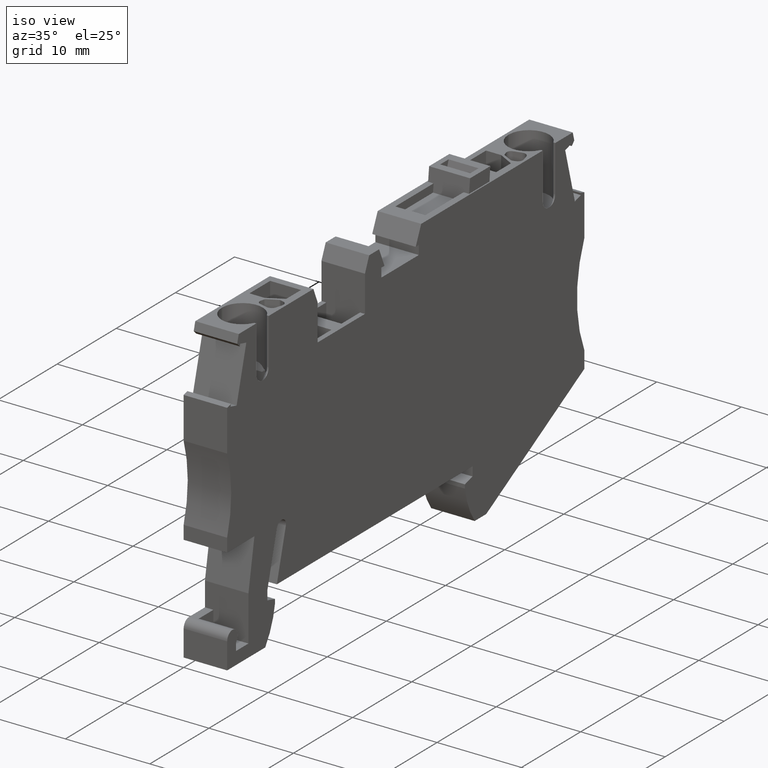
[diagram: clean part render]
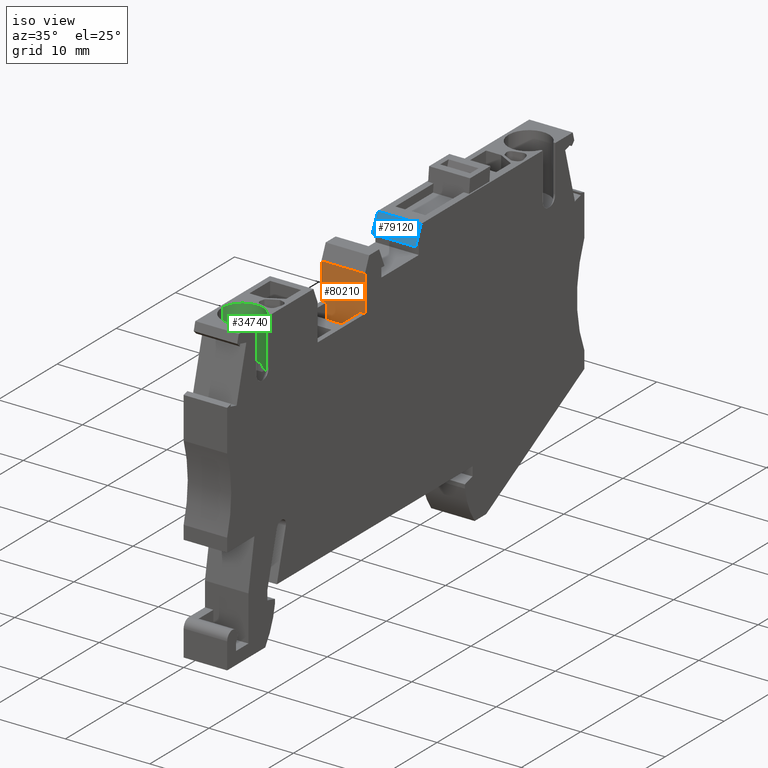
[diagram: same view with three faces highlighted in distinct colors, each labeled with its STEP entity id]
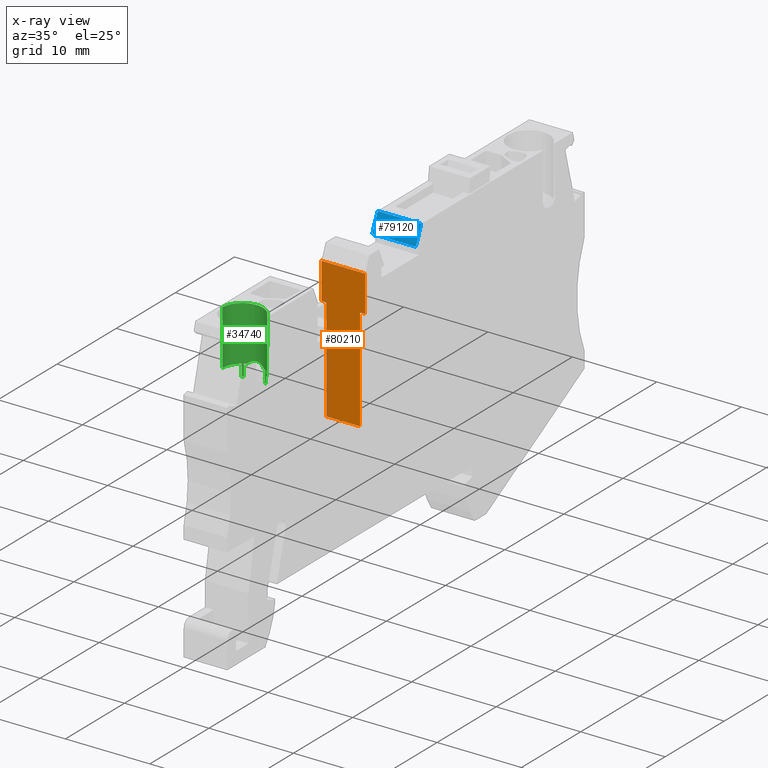
[diagram: x-ray of the same camera — body ghosted, the three highlighted faces saturated]
A machine part, iso view with three faces highlighted in distinct colors.
The next image is the same camera in x-ray (body ghosted, the three faces saturated) — at least one of them is partly hidden behind the body in this view.
Their STEP definitions:

[orange] entity #80210 — the highlighted planar face has unit normal (-0, -1, -0).
#280=CARTESIAN_POINT('',(0.932167221675293,-15.1500000000016,
53.6700000000084));
#290=VERTEX_POINT('',#280);
#320=CARTESIAN_POINT('',(0.932167221675449,-42.5540372297518,
53.6699999999942));
#330=DIRECTION('',(5.53723733531797E-15,-1.,0.));
#340=VECTOR('',#330,1.);
#350=LINE('',#320,#340);
#360=CARTESIAN_POINT('',(0.932167221675343,-10.8500000000034,
53.6700000000109));
#370=VERTEX_POINT('',#360);
#380=EDGE_CURVE('',#370,#290,#350,.T.);
#10530=CARTESIAN_POINT('',(0.932167221675343,-10.8500000000034,
48.5199999999973));
#10540=VERTEX_POINT('',#10530);
#10570=CARTESIAN_POINT('',(0.932167221675449,-42.5540372297518,
48.5199999999973));
#10580=DIRECTION('',(-5.53723733531797E-15,1.,0.));
#10590=VECTOR('',#10580,1.);
#10600=LINE('',#10570,#10590);
#10610=CARTESIAN_POINT('',(0.932167221675293,-15.1500000000016,
48.5199999999973));
#10620=VERTEX_POINT('',#10610);
#10630=EDGE_CURVE('',#10620,#10540,#10600,.T.);
#11380=CARTESIAN_POINT('',(0.932167221675293,-15.1500000000016,53.67));
#11390=DIRECTION('',(0.,0.,1.));
#11400=VECTOR('',#11390,1.);
#11410=LINE('',#11380,#11400);
#11420=CARTESIAN_POINT('',(0.9321672216753,-15.1500000000016,
49.0949999999999));
#11430=VERTEX_POINT('',#11420);
#11440=EDGE_CURVE('',#10620,#11430,#11410,.T.);
#11660=CARTESIAN_POINT('',(0.932167221675307,-15.1500000000016,53.095));
#11670=VERTEX_POINT('',#11660);
#11700=EDGE_CURVE('',#11670,#290,#11410,.T.);
#79700=CARTESIAN_POINT('',(0.932167221675336,-10.8500000000033,49.845));
#79710=DIRECTION('',(0.,0.,1.));
#79720=VECTOR('',#79710,1.);
#79730=LINE('',#79700,#79720);
#79740=EDGE_CURVE('',#10540,#370,#79730,.T.);
#79870=CARTESIAN_POINT('',(0.932167221675293,-15.1500000000016,
53.0949999999999));
#79880=DIRECTION('',(-1.,-5.53723733531797E-15,-0.));
#79890=DIRECTION('',(-5.53723733531797E-15,1.,0.));
#79900=AXIS2_PLACEMENT_3D('',#79870,#79880,#79890);
#79910=PLANE('',#79900);
#79920=CARTESIAN_POINT('',(0.932167221675449,-42.5540372297518,53.095));
#79930=DIRECTION('',(5.53723733531797E-15,-1.,0.));
#79940=VECTOR('',#79930,1.);
#79950=LINE('',#79920,#79940);
#79960=CARTESIAN_POINT('',(0.932167221675371,-27.35,53.095));
#79970=VERTEX_POINT('',#79960);
#79980=EDGE_CURVE('',#11670,#79970,#79950,.T.);
#79990=ORIENTED_EDGE('',*,*,#79980,.F.);
#80000=CARTESIAN_POINT('',(0.932167221675371,-27.35,53.67));
#80010=DIRECTION('',(0.,0.,-1.));
#80020=VECTOR('',#80010,1.);
#80030=LINE('',#80000,#80020);
#80040=CARTESIAN_POINT('',(0.932167221675371,-27.35,49.0949999999999));
#80050=VERTEX_POINT('',#80040);
#80060=EDGE_CURVE('',#79970,#80050,#80030,.T.);
#80070=ORIENTED_EDGE('',*,*,#80060,.F.);
#80080=CARTESIAN_POINT('',(0.932167221675449,-42.5540372297518,
49.0949999999999));
#80090=DIRECTION('',(5.53723733531797E-15,-1.,0.));
#80100=VECTOR('',#80090,1.);
#80110=LINE('',#80080,#80100);
#80120=EDGE_CURVE('',#11430,#80050,#80110,.T.);
#80130=ORIENTED_EDGE('',*,*,#80120,.T.);
#80140=ORIENTED_EDGE('',*,*,#11440,.T.);
#80150=ORIENTED_EDGE('',*,*,#10630,.F.);
#80160=ORIENTED_EDGE('',*,*,#79740,.F.);
#80170=ORIENTED_EDGE('',*,*,#380,.F.);
#80180=ORIENTED_EDGE('',*,*,#11700,.T.);
#80190=EDGE_LOOP('',(#80180,#80170,#80160,#80150,#80140,#80130,#80070,
#79990));
#80200=FACE_OUTER_BOUND('',#80190,.T.);
#80210=ADVANCED_FACE('',(#80200),#79910,.T.);

[blue] entity #79120 — the highlighted planar face has unit normal (-0, -0.9155, 0.4023).
#1000=CARTESIAN_POINT('',(9.51676875458973,-11.2550000000016,
53.6700000000117));
#1010=VERTEX_POINT('',#1000);
#1040=CARTESIAN_POINT('',(-3.97307229660355,-41.9517495493763,
53.6699999999924));
#1050=DIRECTION('',(-0.402320578212711,-0.915498854366618,
-5.73485703370125E-13));
#1060=VECTOR('',#1050,1.);
#1070=LINE('',#1040,#1060);
#1080=CARTESIAN_POINT('',(10.4418215966536,-9.15000000000095,
53.670000000013));
#1090=VERTEX_POINT('',#1080);
#1100=EDGE_CURVE('',#1090,#1010,#1070,.T.);
#9810=CARTESIAN_POINT('',(10.4418215966535,-9.15000000000095,
48.5199999999973));
#9820=VERTEX_POINT('',#9810);
#9850=CARTESIAN_POINT('',(-3.97307229660355,-41.9517495493763,
48.5199999999973));
#9860=DIRECTION('',(0.402320578212711,0.915498854366618,0.));
#9870=VECTOR('',#9860,1.);
#9880=LINE('',#9850,#9870);
#9890=CARTESIAN_POINT('',(9.51676875458973,-11.2550000000016,
48.5199999999973));
#9900=VERTEX_POINT('',#9890);
#9910=EDGE_CURVE('',#9900,#9820,#9880,.T.);
#13550=CARTESIAN_POINT('',(9.51676875458971,-11.2550000000016,53.67));
#13560=DIRECTION('',(0.,0.,-1.));
#13570=VECTOR('',#13560,1.);
#13580=LINE('',#13550,#13570);
#13590=EDGE_CURVE('',#1010,#9900,#13580,.T.);
#51090=CARTESIAN_POINT('',(10.4418215966535,-9.15000000000095,53.67));
#51100=DIRECTION('',(0.,0.,1.));
#51110=VECTOR('',#51100,1.);
#51120=LINE('',#51090,#51110);
#51130=EDGE_CURVE('',#9820,#1090,#51120,.T.);
#79010=CARTESIAN_POINT('',(9.62153241643358,-11.0166055017053,48.0049976
));
#79020=DIRECTION('',(-0.915498854366618,0.402320578212711,0.));
#79030=DIRECTION('',(0.402320578212711,0.915498854366618,0.));
#79040=AXIS2_PLACEMENT_3D('',#79010,#79020,#79030);
#79050=PLANE('',#79040);
#79060=ORIENTED_EDGE('',*,*,#1100,.F.);
#79070=ORIENTED_EDGE('',*,*,#13590,.F.);
#79080=ORIENTED_EDGE('',*,*,#9910,.F.);
#79090=ORIENTED_EDGE('',*,*,#51130,.F.);
#79100=EDGE_LOOP('',(#79090,#79080,#79070,#79060));
#79110=FACE_OUTER_BOUND('',#79100,.T.);
#79120=ADVANCED_FACE('',(#79110),#79050,.T.);

[green] entity #34740 — the highlighted cylindrical surface (edge-blend (fillet) strip) has radius 2.4 mm, axis along (0, -0, -1).
#5660=CARTESIAN_POINT('',(-16.3428327783249,-15.6445224466506,
53.670000000006));
#5670=VERTEX_POINT('',#5660);
#23200=CARTESIAN_POINT('',(-15.342832778324,-9.15000000000337,
53.4517424229313));
#23210=VERTEX_POINT('',#23200);
#23240=CARTESIAN_POINT('',(-16.3428327783239,-9.15000000000349,
51.2700000000041));
#23250=DIRECTION('',(2.14536721721004E-13,1.,-8.45638444024485E-18));
#23260=DIRECTION('',(-1.,2.14536721721004E-13,-1.24382875640965E-16));
#23270=AXIS2_PLACEMENT_3D('',#23240,#23250,#23260);
#23280=CIRCLE('',#23270,2.4);
#23290=CARTESIAN_POINT('',(-16.3428327783239,-9.15000000000349,
48.8700000000041));
#23300=VERTEX_POINT('',#23290);
#23310=EDGE_CURVE('',#23210,#23300,#23280,.T.);
#31130=CARTESIAN_POINT('',(-16.3428327783253,-15.6445224466523,
51.2700000000041));
#31140=DIRECTION('',(2.14536721721004E-13,1.,-8.45638444024485E-18));
#31150=DIRECTION('',(-1.,2.18186579914459E-13,-1.24382875640965E-16));
#31160=AXIS2_PLACEMENT_3D('',#31130,#31140,#31150);
#31170=CIRCLE('',#31160,2.4);
#31180=CARTESIAN_POINT('',(-14.1549474690399,-15.6445224466543,
50.2835123551688));
#31190=VERTEX_POINT('',#31180);
#31200=CARTESIAN_POINT('',(-14.2928327783257,-15.6445224466528,
50.0220016025687));
#31210=VERTEX_POINT('',#31200);
#31220=EDGE_CURVE('',#31190,#31210,#31170,.T.);
#32100=CARTESIAN_POINT('',(-14.1549474690386,-15.6445224466525,
52.2564876448391));
#32110=VERTEX_POINT('',#32100);
#32230=CARTESIAN_POINT('',(-16.3428327783264,-20.3364576336993,
51.2700000000041));
#32240=DIRECTION('',(-0.90630778703661,0.422618261740786,
-1.16302991260173E-16));
#32250=DIRECTION('',(0.422618261740786,0.90630778703661,
4.49023876253122E-17));
#32260=AXIS2_PLACEMENT_3D('',#32230,#32240,#32250);
#32270=ELLIPSE('',#32260,5.67888379956745,2.4);
#32280=EDGE_CURVE('',#32110,#31190,#32270,.T.);
#32440=CARTESIAN_POINT('',(-14.2928327783255,-16.9888751282982,
52.517998397438));
#32450=VERTEX_POINT('',#32440);
#32460=CARTESIAN_POINT('',(-14.2928327783255,-16.9888751282982,
50.0220016025702));
#32470=VERTEX_POINT('',#32460);
#32500=CARTESIAN_POINT('',(-14.2928327783245,-6.99021844665472,
50.0220016025676));
#32510=DIRECTION('',(-2.14536721721004E-13,-1.,8.45638444024485E-18));
#32520=VECTOR('',#32510,1.);
#32530=LINE('',#32500,#32520);
#32540=EDGE_CURVE('',#31210,#32470,#32530,.T.);
#32780=CARTESIAN_POINT('',(-14.2928327783245,-15.6445224466525,
52.5179983974395));
#32790=VERTEX_POINT('',#32780);
#32820=CARTESIAN_POINT('',(-14.2928327783245,-6.99021844665472,
52.5179983974407));
#32830=DIRECTION('',(-2.14536721721004E-13,-1.,8.45638444024485E-18));
#32840=VECTOR('',#32830,1.);
#32850=LINE('',#32820,#32840);
#32860=EDGE_CURVE('',#32790,#32450,#32850,.T.);
#33000=CARTESIAN_POINT('',(-16.3428327783253,-15.6445224466523,
51.2700000000041));
#33010=DIRECTION('',(2.14536721721004E-13,1.,-8.45638444024485E-18));
#33020=DIRECTION('',(-1.,2.16354711923827E-13,-1.24382875640965E-16));
#33030=AXIS2_PLACEMENT_3D('',#33000,#33010,#33020);
#33040=CIRCLE('',#33030,2.4);
#33050=EDGE_CURVE('',#32790,#32110,#33040,.T.);
#33170=CARTESIAN_POINT('',(-16.3428327783235,-6.99021844665429,
51.2700000000041));
#33180=DIRECTION('',(-2.14536721721004E-13,-1.,8.45638444024485E-18));
#33190=DIRECTION('',(-1.,2.14453454994157E-13,-1.24382875640965E-16));
#33200=AXIS2_PLACEMENT_3D('',#33170,#33180,#33190);
#33210=CYLINDRICAL_SURFACE('',#33200,2.4);
#33220=CARTESIAN_POINT('',(-16.3428327783235,-6.99021844665429,
48.8700000000041));
#33230=DIRECTION('',(-2.14508966145388E-13,-1.,8.45638444024486E-18));
#33240=VECTOR('',#33230,1.);
#33250=LINE('',#33220,#33240);
#33260=CARTESIAN_POINT('',(-16.3428327783253,-15.6445224466539,
48.8700000000041));
#33270=VERTEX_POINT('',#33260);
#33280=EDGE_CURVE('',#23300,#33270,#33250,.T.);
#33290=ORIENTED_EDGE('',*,*,#33280,.T.);
#33300=ORIENTED_EDGE('',*,*,#23310,.T.);
#33310=CARTESIAN_POINT('',(-15.3428327783245,-6.9902184466545,
53.4517424229317));
#33320=DIRECTION('',(-2.14536721721004E-13,-1.,8.45638444024485E-18));
#33330=VECTOR('',#33320,1.);
#33340=LINE('',#33310,#33330);
#33350=CARTESIAN_POINT('',(-15.3428327783244,-14.6445224466602,
53.4517424229309));
#33360=VERTEX_POINT('',#33350);
#33370=EDGE_CURVE('',#23210,#33360,#33340,.T.);
#33380=ORIENTED_EDGE('',*,*,#33370,.F.);
#33390=CARTESIAN_POINT('',(-16.3428327783244,-14.6445224466602,
53.6700000000005));
#33400=DIRECTION('',(6.64438279136028E-17,-1.70471113707983E-17,1.));
#33410=DIRECTION('',(-1.,-1.10883524584438E-14,-1.24382875640963E-16));
#33420=AXIS2_PLACEMENT_3D('',#33390,#33400,#33410);
#33430=CYLINDRICAL_SURFACE('',#33420,0.999999999999998);
#33440=CARTESIAN_POINT('',(-15.3428327783244,-14.6445224466602,
53.4517424229309));
#33450=CARTESIAN_POINT('',(-15.3428327783244,-14.6609937294319,
53.4517424229309));
#33460=CARTESIAN_POINT('',(-15.3432399993167,-14.6775034901492,
53.4519292120811));
#33470=CARTESIAN_POINT('',(-15.3440585453957,-14.6940202409314,
53.4523038357787));
#33480=CARTESIAN_POINT('',(-15.3448770865429,-14.7105368921962,
53.4526784572191));
#33490=CARTESIAN_POINT('',(-15.3461069717698,-14.72706014291,
53.4532409214868));
#33500=CARTESIAN_POINT('',(-15.3477486724844,-14.7435558869948,
53.453988924496));
#33510=CARTESIAN_POINT('',(-15.349390367361,-14.7600515724208,
53.4547369248453));
#33520=CARTESIAN_POINT('',(-15.3514438585261,-14.7765193468151,
53.4556704484424));
#33530=CARTESIAN_POINT('',(-15.3539055887324,-14.7929239752426,
53.4567837144313));
#33540=CARTESIAN_POINT('',(-15.3563673156137,-14.8093285815131,
53.4578969789167));
#33550=CARTESIAN_POINT('',(-15.3592372275142,-14.8256696451151,
53.4591899484136));
#33560=CARTESIAN_POINT('',(-15.3625076782924,-14.8419121582644,
53.4606534865797));
#33570=CARTESIAN_POINT('',(-15.3657781312344,-14.8581546821603,
53.4621170257141));
#33580=CARTESIAN_POINT('',(-15.3694490398065,-14.8742982838228,
53.4637510781326));
#33590=CARTESIAN_POINT('',(-15.3735088995456,-14.8903093829061,
53.4655434903563));
#33600=CARTESIAN_POINT('',(-15.377568769701,-14.9063205230689,
53.4673359071787));
#33610=CARTESIAN_POINT('',(-15.3820174852814,-14.9221988263394,
53.4692866155143));
#33620=CARTESIAN_POINT('',(-15.3868401648258,-14.9379131808971,
53.4713809581608));
#33630=CARTESIAN_POINT('',(-15.3916628658312,-14.953627605384,
53.4734753101271));
#33640=CARTESIAN_POINT('',(-15.3968594094761,-14.969177792527,
53.4757132207877));
#33650=CARTESIAN_POINT('',(-15.4024122394638,-14.9845359906392,
53.4780781711946));
#33660=CARTESIAN_POINT('',(-15.4079644412736,-14.9998924513163,
53.4804428540604));
#33670=CARTESIAN_POINT('',(-15.413867555631,-15.0150487251371,
53.4829324523844));
#33680=CARTESIAN_POINT('',(-15.4201574145124,-15.0301001599871,
53.4855518890406));
#33690=CARTESIAN_POINT('',(-15.4327302352219,-15.0601865252548,
53.4907878900477));
#33700=CARTESIAN_POINT('',(-15.4467936958893,-15.0896960648176,
53.4965198229913));
#33710=CARTESIAN_POINT('',(-15.462263972199,-15.1184407705083,
53.5026214586661));
#33720=CARTESIAN_POINT('',(-15.4777340815157,-15.1471851659159,
53.5087230284771));
#33730=CARTESIAN_POINT('',(-15.4946084880179,-15.1751596680484,
53.5151926651029));
#33740=CARTESIAN_POINT('',(-15.5127674134959,-15.202188556544,
53.5218862071894));
#33750=CARTESIAN_POINT('',(-15.5309264107709,-15.2292175519068,
53.528579775741));
#33760=CARTESIAN_POINT('',(-15.5503669502101,-15.255296719489,
53.5354955421319));
#33770=CARTESIAN_POINT('',(-15.5709412492555,-15.2802766974142,
53.5424839861634));
#33780=CARTESIAN_POINT('',(-15.5812282993428,-15.2927665656488,
53.5459781744041));
#33790=CARTESIAN_POINT('',(-15.5917981190228,-15.3049817409914,
53.5494904283235));
#33800=CARTESIAN_POINT('',(-15.6026303698287,-15.316906558948,
53.5530024955034));
#33810=CARTESIAN_POINT('',(-15.6134549482242,-15.3288229306363,
53.5565120751097));
#33820=CARTESIAN_POINT('',(-15.6245661128332,-15.3404778543488,
53.5600296859586));
#33830=CARTESIAN_POINT('',(-15.6359925944834,-15.3518957247162,
53.5635511667554));
#33840=CARTESIAN_POINT('',(-15.6588386202427,-15.3747245331385,
53.5705919902966));
#33850=CARTESIAN_POINT('',(-15.682887699446,-15.3965395335475,
53.5776288969995));
#33860=CARTESIAN_POINT('',(-15.7080104518019,-15.4171805947196,
53.5845195211457));
#33870=CARTESIAN_POINT('',(-15.7331330106512,-15.4378214969051,
53.5914100922173));
#33880=CARTESIAN_POINT('',(-15.7593255062729,-15.4572850875966,
53.5981528035489));
#33890=CARTESIAN_POINT('',(-15.7864270457807,-15.4754331884509,
53.6046118865468));
#33900=CARTESIAN_POINT('',(-15.8135287525433,-15.4935814013045,
53.6110710094064));
#33910=CARTESIAN_POINT('',(-15.8415348709715,-15.5104110936747,
53.6172450042276));
#33920=CARTESIAN_POINT('',(-15.8702648050797,-15.5258166714612,
53.6230149830975));
#33930=CARTESIAN_POINT('',(-15.8846296095155,-15.5335193731552,
53.625899939873));
#33940=CARTESIAN_POINT('',(-15.8991746653022,-15.5408663359029,
53.6286841162092));
#33950=CARTESIAN_POINT('',(-15.9138766570923,-15.5478477734708,
53.631354832734));
#33960=CARTESIAN_POINT('',(-15.9285753027084,-15.5548276220632,
53.6340249414036));
#33970=CARTESIAN_POINT('',(-15.9434330494054,-15.5614446777848,
53.636582554862));
#33980=CARTESIAN_POINT('',(-15.9585046792467,-15.5677190195846,
53.6390276301213));
#33990=CARTESIAN_POINT('',(-15.9735699912738,-15.5739907312689,
53.6414716804396));
#34000=CARTESIAN_POINT('',(-15.9888216175533,-15.5799070348116,
53.643798306085));
#34010=CARTESIAN_POINT('',(-16.0042319069313,-15.5854525449629,
53.6459944128534));
#34020=CARTESIAN_POINT('',(-16.0196421829957,-15.5909980503232,
53.6481905177246));
#34030=CARTESIAN_POINT('',(-16.0352108625168,-15.5961726603874,
53.6502560521843));
#34040=CARTESIAN_POINT('',(-16.050908522218,-15.6009638869465,
53.6521797221695));
#34050=CARTESIAN_POINT('',(-16.0666061933107,-15.6057551169824,
53.6541033935507));
#34060=CARTESIAN_POINT('',(-16.0824325635394,-15.6101628796641,
53.6558851574076));
#34070=CARTESIAN_POINT('',(-16.0983572975564,-15.6141779211991,
53.6575158092298));
#34080=CARTESIAN_POINT('',(-16.1142835287048,-15.6181933402,
53.6591466143545));
#34090=CARTESIAN_POINT('',(-16.130301454342,-15.6218146081577,
53.6606257164884));
#34100=CARTESIAN_POINT('',(-16.1463990428628,-15.6250395487918,
53.6619476975034));
#34110=CARTESIAN_POINT('',(-16.1625037709069,-15.6282659197357,
53.663270264837));
#34120=CARTESIAN_POINT('',(-16.1787190016611,-15.6311014082659,
53.6644379566844));
#34130=CARTESIAN_POINT('',(-16.1950116147499,-15.633536553536,
53.6654433626406));
#34140=CARTESIAN_POINT('',(-16.2113042084497,-15.6359716959082,
53.6664487674003));
#34150=CARTESIAN_POINT('',(-16.2276738327053,-15.6380064328465,
53.6672918544085));
#34160=CARTESIAN_POINT('',(-16.2440860593591,-15.6396350460647,
53.6679676990137));
#34170=CARTESIAN_POINT('',(-16.2769273721668,-15.642893945498,
53.6693200824873));
#34180=CARTESIAN_POINT('',(-16.3098638013993,-15.6445224466602,
53.6700000000041));
#34190=CARTESIAN_POINT('',(-16.3428327783248,-15.6445224466602,
53.6700000000041));
#34200=B_SPLINE_CURVE_WITH_KNOTS('',3,(#33440,#33450,#33460,#33470,
#33480,#33490,#33500,#33510,#33520,#33530,#33540,#33550,#33560,#33570,
#33580,#33590,#33600,#33610,#33620,#33630,#33640,#33650,#33660,#33670,
#33680,#33690,#33700,#33710,#33720,#33730,#33740,#33750,#33760,#33770,
#33780,#33790,#33800,#33810,#33820,#33830,#33840,#33850,#33860,#33870,
#33880,#33890,#33900,#33910,#33920,#33930,#33940,#33950,#33960,#33970,
#33980,#33990,#34000,#34010,#34020,#34030,#34040,#34050,#34060,#34070,
#34080,#34090,#34100,#34110,#34120,#34130,#34140,#34150,#34160,#34170,
#34180,#34190),.UNSPECIFIED.,.F.,.F.,(4,3,3,3,3,3,3,3,3,3,3,3,3,3,3,3,3,
3,3,3,3,3,3,3,3,4),(0.,0.0495222692515477,0.0992298942329245,
0.149064989412232,0.198959033159897,0.248837074435064,0.298621508203747,
0.348235771127541,0.397706633074543,0.497087658472412,0.596803861500489,
0.696371962687517,0.745940559031635,0.795428028473136,0.894905849219854,
0.994675469479918,1.09424413440862,1.14381654088092,1.1932727156861,
1.24281586857656,1.29239520600218,1.34194342067875,1.39140236455009,
1.44088137071475,1.4904035402114,1.58933923289442),.UNSPECIFIED.);
#34210=SURFACE_CURVE('',#34200,(#33210,#33430),.CURVE_3D.);
#34220=EDGE_CURVE('',#33360,#5670,#34210,.T.);
#34230=ORIENTED_EDGE('',*,*,#34220,.F.);
#34240=CARTESIAN_POINT('',(-16.3428327783253,-15.6445224466523,
51.2700000000041));
#34250=DIRECTION('',(2.14536721721004E-13,1.,-8.45638444024485E-18));
#34260=DIRECTION('',(-1.,2.16354711923827E-13,-1.24382875640965E-16));
#34270=AXIS2_PLACEMENT_3D('',#34240,#34250,#34260);
#34280=CIRCLE('',#34270,2.4);
#34290=CARTESIAN_POINT('',(-14.4303736284335,-15.6445224466525,
52.720000000004));
#34300=VERTEX_POINT('',#34290);
#34310=EDGE_CURVE('',#5670,#34300,#34280,.T.);
#34320=ORIENTED_EDGE('',*,*,#34310,.F.);
#34330=CARTESIAN_POINT('',(-14.430373628433,-6.9902184466547,
52.7200000000041));
#34340=DIRECTION('',(-2.14536721721004E-13,-1.,8.45638444024485E-18));
#34350=VECTOR('',#34340,1.);
#34360=LINE('',#34330,#34350);
#34370=CARTESIAN_POINT('',(-14.4303736284351,-17.0682843751335,
52.7200000000042));
#34380=VERTEX_POINT('',#34370);
#34390=EDGE_CURVE('',#34300,#34380,#34360,.T.);
#34400=ORIENTED_EDGE('',*,*,#34390,.F.);
#34410=CARTESIAN_POINT('',(-16.3428327783259,-18.172443180137,
51.2700000000041));
#34420=DIRECTION('',(-0.49999999999995,0.866025403784468,
-6.95148815699239E-17));
#34430=DIRECTION('',(0.866025403784467,0.49999999999995,
1.03490537880713E-16));
#34440=AXIS2_PLACEMENT_3D('',#34410,#34420,#34430);
#34450=ELLIPSE('',#34440,2.77128129211045,2.4);
#34460=EDGE_CURVE('',#34380,#32450,#34450,.T.);
#34470=ORIENTED_EDGE('',*,*,#34460,.F.);
#34480=ORIENTED_EDGE('',*,*,#32860,.T.);
#34490=ORIENTED_EDGE('',*,*,#33050,.F.);
#34500=ORIENTED_EDGE('',*,*,#32280,.F.);
#34510=ORIENTED_EDGE('',*,*,#31220,.F.);
#34520=ORIENTED_EDGE('',*,*,#32540,.F.);
#34530=CARTESIAN_POINT('',(-14.4303736284351,-17.0682843751335,
49.8200000000041));
#34540=VERTEX_POINT('',#34530);
#34550=EDGE_CURVE('',#32470,#34540,#34450,.T.);
#34560=ORIENTED_EDGE('',*,*,#34550,.F.);
#34570=CARTESIAN_POINT('',(-14.4303736284329,-6.99021844665469,
49.8200000000041));
#34580=DIRECTION('',(-2.14536721721004E-13,-1.,8.45638444024485E-18));
#34590=VECTOR('',#34580,1.);
#34600=LINE('',#34570,#34590);
#34610=CARTESIAN_POINT('',(-14.4303736284348,-15.6445224466528,
49.8200000000041));
#34620=VERTEX_POINT('',#34610);
#34630=EDGE_CURVE('',#34620,#34540,#34600,.T.);
#34640=ORIENTED_EDGE('',*,*,#34630,.T.);
#34650=CARTESIAN_POINT('',(-16.3428327783253,-15.6445224466523,
51.2700000000041));
#34660=DIRECTION('',(2.14536721721004E-13,1.,-8.45638444024485E-18));
#34670=DIRECTION('',(-1.,2.18186579914459E-13,-1.24382875640965E-16));
#34680=AXIS2_PLACEMENT_3D('',#34650,#34660,#34670);
#34690=CIRCLE('',#34680,2.4);
#34700=EDGE_CURVE('',#34620,#33270,#34690,.T.);
#34710=ORIENTED_EDGE('',*,*,#34700,.F.);
#34720=EDGE_LOOP('',(#34710,#34640,#34560,#34520,#34510,#34500,#34490,
#34480,#34470,#34400,#34320,#34230,#33380,#33300,#33290));
#34730=FACE_OUTER_BOUND('',#34720,.T.);
#34740=ADVANCED_FACE('',(#34730),#33210,.F.);